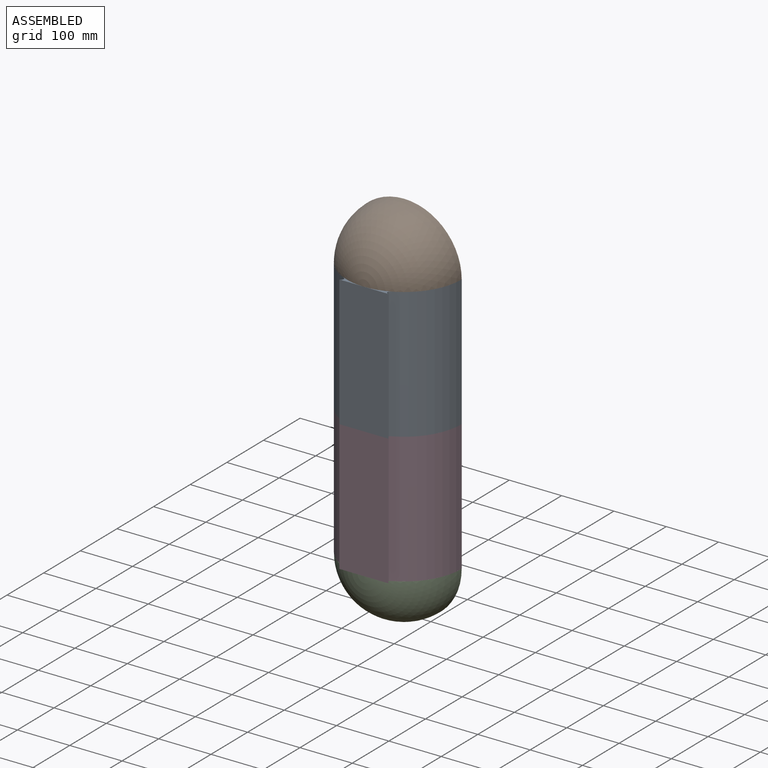
[diagram: assembled view]
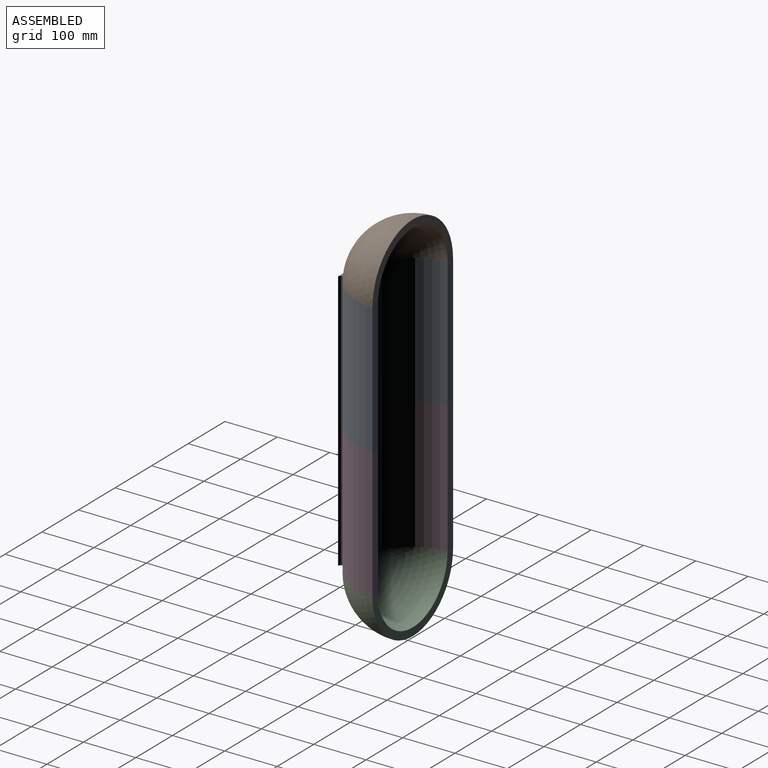
[diagram: assembled view, second angle]
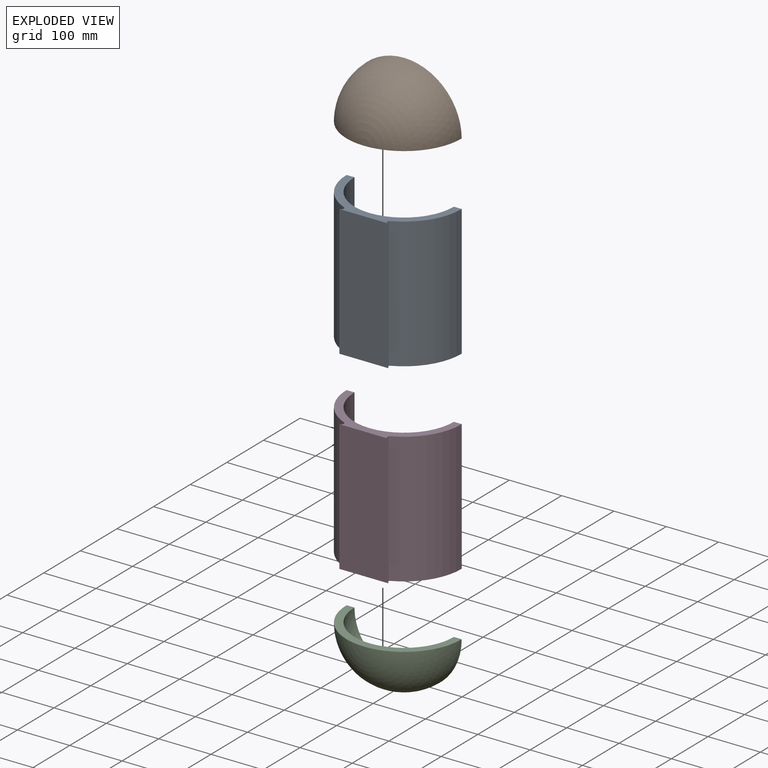
[diagram: exploded view]
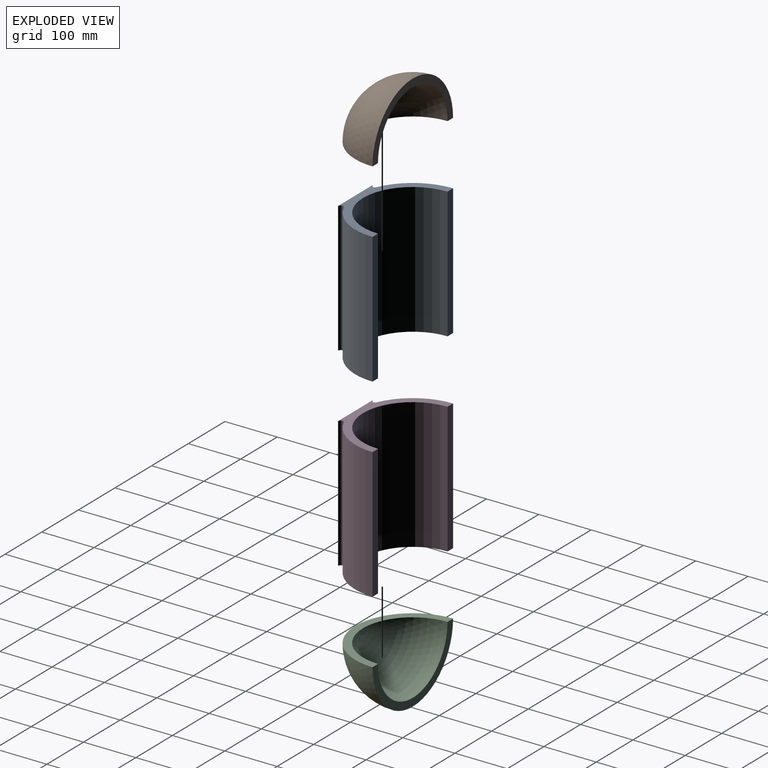
[diagram: exploded view, second angle]
ASSEMBLY  parts=4 mates=3
PART A: 10 faces, bbox 220x110x250 mm
  f0: plane 250x93.81mm, normal (0,-1,0), area 23452.1mm2, adj f1,f7,f8,f9
  f1: cylinder r=5mm len=250mm, axis (0,0,-1), area 3401.9mm2, adj f0,f2,f8,f9
  f2: cylinder r=110mm len=250mm, axis (0,0,-1), area 31643.8mm2, adj f1,f3,f8,f9
  f3: plane 250x15mm, normal (0,1,0), area 3750mm2, adj f2,f4,f8,f9
  f4: cylinder r=95mm len=250mm, axis (0,0,-1), area 74612.8mm2, adj f3,f5,f8,f9
  f5: plane 250x15mm, normal (0,1,0), area 3750mm2, adj f4,f6,f8,f9
  f6: cylinder r=110mm len=250mm, axis (0,0,-1), area 31643.8mm2, adj f5,f7,f8,f9
  f7: cylinder r=5mm len=250mm, axis (0,0,-1), area 3401.9mm2, adj f0,f6,f8,f9
  f8: plane 220x110mm, normal (0,0,1), area 5072.8mm2, adj f0,f1,f2,f3,f4,f5,f6,f7
  f9: plane 220x110mm, normal (0,0,-1), area 5072.8mm2, adj f0,f1,f2,f3,f4,f5,f6,f7
PART B: 4 faces, bbox 220x110x110 mm
  f0: sphere r=95mm, area 28352.9mm2, adj f1,f3
  f1: plane 220x110mm, normal (0,1,0), area 4830.2mm2, adj f0,f2,f3
  f2: sphere r=110mm, area 38013.3mm2, adj f1,f3
  f3: plane 220x110mm, normal (0,0,-1), area 4830.2mm2, adj f0,f1,f2
PART C: same geometry as B
PART D: same geometry as A
PLACE A t=(-83.46,60.95,206.2)mm
PLACE B t=(-83.46,60.95,206.2)mm
PLACE C rot(axis=(0,1,0),180deg) t=(-83.46,60.95,206.2)mm
PLACE D t=(-83.46,60.95,-43.8)mm
MATE fastened B.f3 <-> A.f8  axis (0,0,-1) through (26.54,60.95,456.2)mm
MATE fastened C.f3 <-> D.f9  axis (0,0,-1) through (26.54,60.95,-43.8)mm
MATE fastened A.f9 <-> D.f8  axis (0,0,-1) through (-83.46,-49.05,206.2)mm
